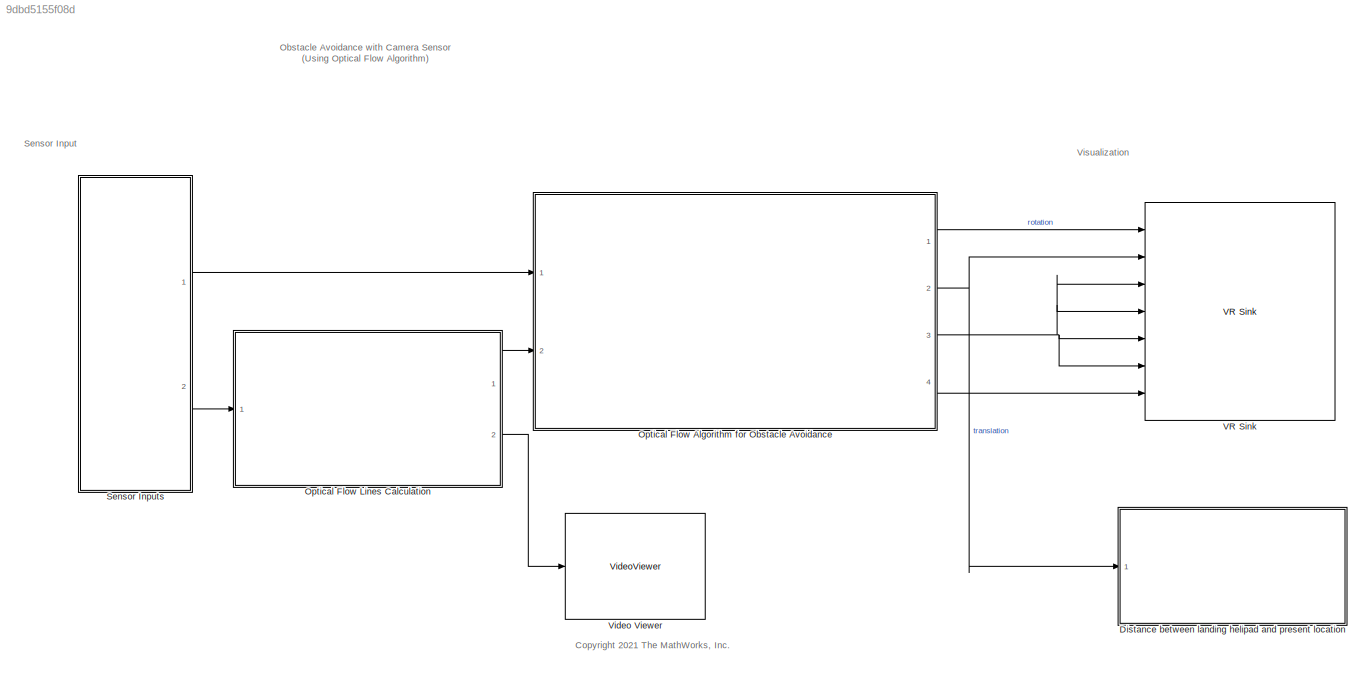
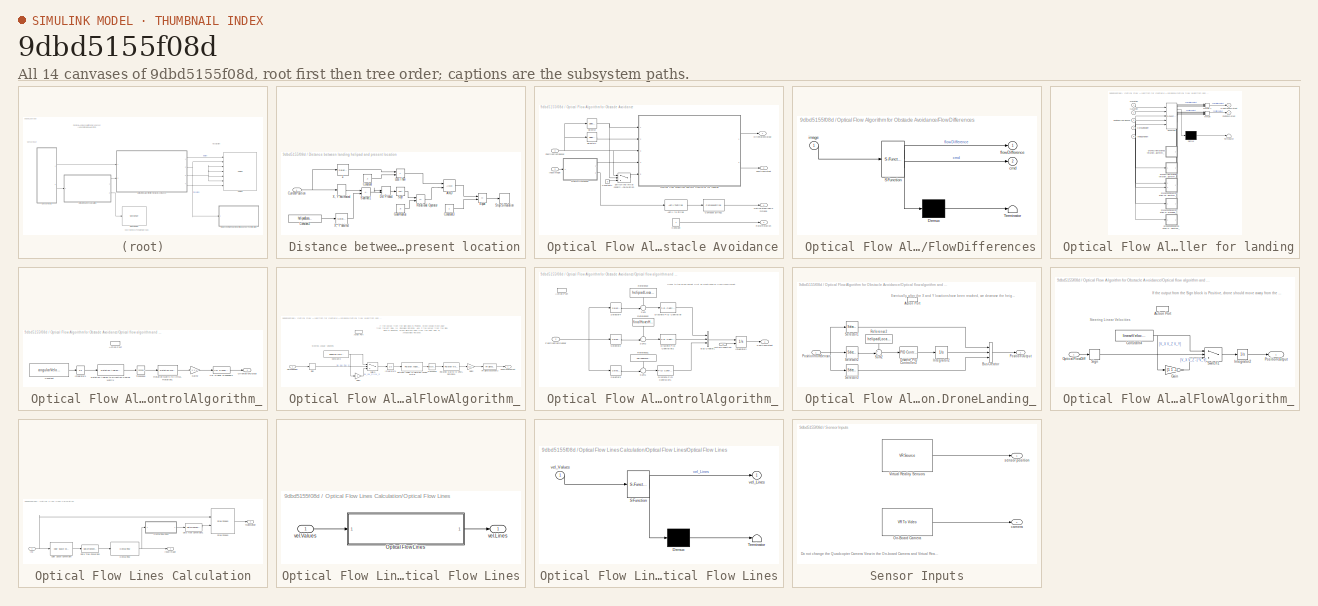
[diagram: thumbnail index - all 14 canvases of the model, root first then tree order]
MODEL slx_9dbd5155f08d
KIND model
CONFIG AbsTol = auto
CONFIG EnableMultiTasking = off
CONFIG FixedStep = auto
CONFIG InitFcn = startScript;
CONFIG MaxStep = auto
CONFIG MinStep = auto
CONFIG PostLoadFcn = %Add subfolders to path\naddpath('virtualworld');\n
CONFIG RelTol = 1e-3
CONFIG SampleTimeConstraint = Unconstrained
CONFIG SolverName = VariableStepAuto
CONFIG StartTime = 0.0
CONFIG StopTime = 30
BLOCK [SubSystem]  Distance between landing helipad and present location
  Ports = [1]
  RequestExecContextInheritance = off
BLOCK [Logic]  Distance between landing helipad and present location/AND
  AllPortsSameDT = off
  IconShape = distinctive
  OutDataTypeStr = boolean
  Ports = [2, 1]
BLOCK [Constant]  Distance between landing helipad and present location/Constant
  Value = .2
BLOCK [Constant]  Distance between landing helipad and present location/Constant2
  Value = helipadLocation
BLOCK [Constant]  Distance between landing helipad and present location/Constant3
BLOCK [Inport]  Distance between landing helipad and present location/CurrentPosition
BLOCK [DotProduct]  Distance between landing helipad and present location/Dot Product
  OutDataTypeStr = Inherit: Inherit via internal rule
BLOCK [RelationalOperator]  Distance between landing helipad and present location/Equal
  InputSameDT = off
  Operator = ==
  OutDataTypeStr = boolean
  Ports = [2, 1]
  RndMeth = Simplest
BLOCK [Constant]  Distance between landing helipad and present location/GoalRadius
  Value = .5
BLOCK [RelationalOperator]  Distance between landing helipad and present location/Less Than
  InputSameDT = off
  Operator = <
  OutDataTypeStr = boolean
  Ports = [2, 1]
  RndMeth = Simplest
BLOCK [RelationalOperator]  Distance between landing helipad and present location/Relational Operator
  InputSameDT = off
  Operator = <=
  OutDataTypeStr = boolean
  Ports = [2, 1]
  RndMeth = Simplest
BLOCK [Sqrt]  Distance between landing helipad and present location/Sqrt
BLOCK [Stop]  Distance between landing helipad and present location/Stop Simulation
BLOCK [Sum]  Distance between landing helipad and present location/Subtract1
  IconShape = rectangular
  Inputs = +-
  Ports = [2, 1]
BLOCK [Selector]  Distance between landing helipad and present location/X, Y desired
  IndexOptions = Index vector (dialog)
  Indices = [1 3]
  InputPortWidth = 3
  OutputSizes = 1
  Ports = [1, 1]
BLOCK [Selector]  Distance between landing helipad and present location/X, Y estimated
  IndexOptions = Index vector (dialog)
  Indices = [1 3]
  InputPortWidth = 3
  OutputSizes = 1
  Ports = [1, 1]
BLOCK [Selector]  Distance between landing helipad and present location/Z
  IndexOptions = Index vector (dialog)
  Indices = [2]
  InputPortWidth = 3
  OutputSizes = 1
  Ports = [1, 1]
BLOCK [SubSystem]  Optical Flow Algorithm for Obstacle Avoidance
  Ports = [2, 4]
  RequestExecContextInheritance = off
BLOCK [ASCIIToString]  Optical Flow Algorithm for Obstacle Avoidance/ASCII to String
BLOCK [ComposeString]  Optical Flow Algorithm for Obstacle Avoidance/Compose String1
  Format = "%s"
  Ports = [1, 1]
BLOCK [Constant]  Optical Flow Algorithm for Obstacle Avoidance/Constant
BLOCK [Constant]  Optical Flow Algorithm for Obstacle Avoidance/Constant1
  Value = 0
BLOCK [SubSystem]  Optical Flow Algorithm for Obstacle Avoidance/FlowDifferences
  ErrorFcn = Stateflow.Translate.translate
  PermitHierarchicalResolution = ExplicitOnly
  Ports = [1, 2]
  RequestExecContextInheritance = off
  SFBlockType = MATLAB Function
  TreatAsAtomicUnit = on
BLOCK [Demux]  Optical Flow Algorithm for Obstacle Avoidance/FlowDifferences/ Demux 
  Outputs = 1
  Ports = [1, 1]
BLOCK [S-Function]  Optical Flow Algorithm for Obstacle Avoidance/FlowDifferences/ SFunction 
  EnableBusSupport = on
  FunctionName = sf_sfun
  PortCounts = [1 3]
  Ports = [1, 3]
  SFcnIsStateOwnerBlock = off
  SFunctionDeploymentMode = off
  Tag = Stateflow S-Function 8
BLOCK [Terminator]  Optical Flow Algorithm for Obstacle Avoidance/FlowDifferences/ Terminator 
BLOCK [Outport]  Optical Flow Algorithm for Obstacle Avoidance/FlowDifferences/cmd
  Port = 2
BLOCK [Outport]  Optical Flow Algorithm for Obstacle Avoidance/FlowDifferences/flowDifference
BLOCK [Inport]  Optical Flow Algorithm for Obstacle Avoidance/FlowDifferences/image
BLOCK [Inport]  Optical Flow Algorithm for Obstacle Avoidance/InputImage
  Port = 2
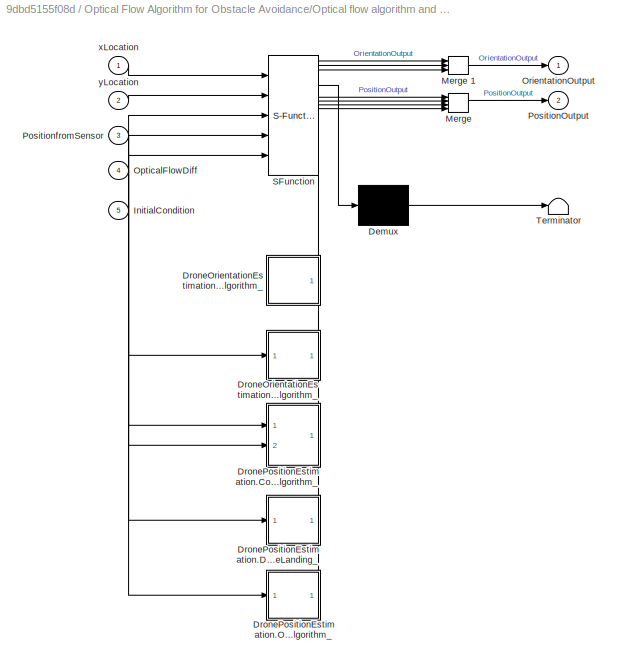
BLOCK [SubSystem]  Optical Flow Algorithm for Obstacle Avoidance/Optical flow algorithm and PID Controller for landing
  ErrorFcn = Stateflow.Translate.translate
  PermitHierarchicalResolution = ExplicitOnly
  Ports = [5, 2]
  RequestExecContextInheritance = off
  SFBlockType = Chart
  TreatAsAtomicUnit = on
BLOCK [Demux]  Optical Flow Algorithm for Obstacle Avoidance/Optical flow algorithm and PID Controller for landing/ Demux 
  Outputs = 1
  Ports = [1, 1]
BLOCK [Merge]  Optical Flow Algorithm for Obstacle Avoidance/Optical flow algorithm and PID Controller for landing/ Merge 
  Inputs = 4
  Ports = [4, 1]
BLOCK [Merge]  Optical Flow Algorithm for Obstacle Avoidance/Optical flow algorithm and PID Controller for landing/ Merge 1
  Inputs = 3
  Ports = [3, 1]
BLOCK [S-Function]  Optical Flow Algorithm for Obstacle Avoidance/Optical flow algorithm and PID Controller for landing/ SFunction 
  EnableBusSupport = on
  FunctionName = sf_sfun
  Parameters = delta,helipadLocation,switchingXLimit
  PortCounts = [5 3]
  Ports = [5, 3]
  SFcnIsStateOwnerBlock = off
  SFunctionDeploymentMode = off
  Tag = Stateflow S-Function 3
BLOCK [Terminator]  Optical Flow Algorithm for Obstacle Avoidance/Optical flow algorithm and PID Controller for landing/ Terminator 
BLOCK [SubSystem]  Optical Flow Algorithm for Obstacle Avoidance/Optical flow algorithm and PID Controller for landing/DroneOrientationEstimation.ControlAlgorithm_
  Ports = [0, 1, 0, 0, 0, 0, 0, 1]
  PreDeleteFcn = Stateflow.SLINSF.SimulinkMan.removePreDeleteFcn
  RequestExecContextInheritance = off
  UndoDeleteFcn = Stateflow.SLINSF.SimulinkMan.restorePreDeleteFcn
BLOCK [ActionPort]  Optical Flow Algorithm for Obstacle Avoidance/Optical flow algorithm and PID Controller for landing/DroneOrientationEstimation.ControlAlgorithm_/Action Port
  CopyFcn = Stateflow.SLINSF.SimulinkMan.removeBlockPreDeleteFcn
  PreDeleteFcn = Stateflow.SLINSF.SimulinkMan.unsafePredeleteFcn
BLOCK [Constant]  Optical Flow Algorithm for Obstacle Avoidance/Optical flow algorithm and PID Controller for landing/DroneOrientationEstimation.ControlAlgorithm_/Constant
  Value = angularVelocityforLanding
BLOCK [Gain]  Optical Flow Algorithm for Obstacle Avoidance/Optical flow algorithm and PID Controller for landing/DroneOrientationEstimation.ControlAlgorithm_/Gain2
  Gain = [-1 1 1 1]
BLOCK [Integrator]  Optical Flow Algorithm for Obstacle Avoidance/Optical flow algorithm and PID Controller for landing/DroneOrientationEstimation.ControlAlgorithm_/Integrator1
  Ports = [1, 1]
BLOCK [Outport]  Optical Flow Algorithm for Obstacle Avoidance/Optical flow algorithm and PID Controller for landing/DroneOrientationEstimation.ControlAlgorithm_/OrientationOutput
BLOCK [Reference]  Optical Flow Algorithm for Obstacle Avoidance/Optical flow algorithm and PID Controller for landing/DroneOrientationEstimation.ControlAlgorithm_/Rotation Angles to Direction Cosine Matrix  REF=sharedtransform/Rotation Angles to
Direction Cosine Matrix
  AttributesFormatString = Rotation Order: %<rotationOrder>
  Ports = [1, 1]
  SourceBlock = sharedtransform/Rotation Angles to\nDirection Cosine Matrix
  SourceProductBaseCode = AE,PW,DR,MT,UV,VE
  SourceType = Ang2DCM
BLOCK [Reference]  Optical Flow Algorithm for Obstacle Avoidance/Optical flow algorithm and PID Controller for landing/DroneOrientationEstimation.ControlAlgorithm_/Rotation Matrix to VRML Rotation1  REF=vrlib/Utilities/Rotation Matrix
to VR Rotation
  Ports = [1, 1]
  SourceBlock = vrlib/Utilities/Rotation Matrix\nto VR Rotation
  SourceProductBaseCode = SL
  SourceType = Rotation Matrix to VR Rotation
BLOCK [Math]  Optical Flow Algorithm for Obstacle Avoidance/Optical flow algorithm and PID Controller for landing/DroneOrientationEstimation.ControlAlgorithm_/Transpose
  Operator = transpose
  Ports = [1, 1]
BLOCK [Reference]  Optical Flow Algorithm for Obstacle Avoidance/Optical flow algorithm and PID Controller for landing/DroneOrientationEstimation.ControlAlgorithm_/VR Signal Expander2  REF=vrlib/VR Signal Expander
  NameLocation = top
  Ports = [1, 1]
  SourceBlock = vrlib/VR Signal Expander
  SourceProductBaseCode = SL
  SourceType = VR Signal Expander
BLOCK [SubSystem]  Optical Flow Algorithm for Obstacle Avoidance/Optical flow algorithm and PID Controller for landing/DroneOrientationEstimation.OpticalFlowAlgorithm_
  Ports = [1, 1, 0, 0, 0, 0, 0, 1]
  PreDeleteFcn = Stateflow.SLINSF.SimulinkMan.removePreDeleteFcn
  RequestExecContextInheritance = off
  UndoDeleteFcn = Stateflow.SLINSF.SimulinkMan.restorePreDeleteFcn
BLOCK [ActionPort]  Optical Flow Algorithm for Obstacle Avoidance/Optical flow algorithm and PID Controller for landing/DroneOrientationEstimation.OpticalFlowAlgorithm_/Action Port
  CopyFcn = Stateflow.SLINSF.SimulinkMan.removeBlockPreDeleteFcn
  PreDeleteFcn = Stateflow.SLINSF.SimulinkMan.unsafePredeleteFcn
BLOCK [Constant]  Optical Flow Algorithm for Obstacle Avoidance/Optical flow algorithm and PID Controller for landing/DroneOrientationEstimation.OpticalFlowAlgorithm_/Constant2
  Value = angularVelocity
BLOCK [Gain]  Optical Flow Algorithm for Obstacle Avoidance/Optical flow algorithm and PID Controller for landing/DroneOrientationEstimation.OpticalFlowAlgorithm_/Gain1
  Gain = -1
BLOCK [Gain]  Optical Flow Algorithm for Obstacle Avoidance/Optical flow algorithm and PID Controller for landing/DroneOrientationEstimation.OpticalFlowAlgorithm_/Gain2
  Gain = [-1 1 1 1]
BLOCK [Integrator]  Optical Flow Algorithm for Obstacle Avoidance/Optical flow algorithm and PID Controller for landing/DroneOrientationEstimation.OpticalFlowAlgorithm_/Integrator1
  Ports = [1, 1]
BLOCK [Inport]  Optical Flow Algorithm for Obstacle Avoidance/Optical flow algorithm and PID Controller for landing/DroneOrientationEstimation.OpticalFlowAlgorithm_/OpticalFlowDiff
BLOCK [Outport]  Optical Flow Algorithm for Obstacle Avoidance/Optical flow algorithm and PID Controller for landing/DroneOrientationEstimation.OpticalFlowAlgorithm_/OrientationOutput 
BLOCK [Reference]  Optical Flow Algorithm for Obstacle Avoidance/Optical flow algorithm and PID Controller for landing/DroneOrientationEstimation.OpticalFlowAlgorithm_/Rotation Angles to Direction Cosine Matrix  REF=sharedtransform/Rotation Angles to
Direction Cosine Matrix
  AttributesFormatString = Rotation Order: %<rotationOrder>
  Ports = [1, 1]
  SourceBlock = sharedtransform/Rotation Angles to\nDirection Cosine Matrix
  SourceProductBaseCode = AE,PW,DR,MT,UV,VE
  SourceType = Ang2DCM
BLOCK [Reference]  Optical Flow Algorithm for Obstacle Avoidance/Optical flow algorithm and PID Controller for landing/DroneOrientationEstimation.OpticalFlowAlgorithm_/Rotation Matrix to VRML Rotation1  REF=vrlib/Utilities/Rotation Matrix
to VR Rotation
  Ports = [1, 1]
  SourceBlock = vrlib/Utilities/Rotation Matrix\nto VR Rotation
  SourceProductBaseCode = SL
  SourceType = Rotation Matrix to VR Rotation
BLOCK [Signum]  Optical Flow Algorithm for Obstacle Avoidance/Optical flow algorithm and PID Controller for landing/DroneOrientationEstimation.OpticalFlowAlgorithm_/Sign
BLOCK [Switch]  Optical Flow Algorithm for Obstacle Avoidance/Optical flow algorithm and PID Controller for landing/DroneOrientationEstimation.OpticalFlowAlgorithm_/Switch
  Criteria = u2 > Threshold
  InputSameDT = off
  SaturateOnIntegerOverflow = off
BLOCK [Math]  Optical Flow Algorithm for Obstacle Avoidance/Optical flow algorithm and PID Controller for landing/DroneOrientationEstimation.OpticalFlowAlgorithm_/Transpose
  Operator = transpose
  Ports = [1, 1]
BLOCK [Reference]  Optical Flow Algorithm for Obstacle Avoidance/Optical flow algorithm and PID Controller for landing/DroneOrientationEstimation.OpticalFlowAlgorithm_/VR Signal Expander2  REF=vrlib/VR Signal Expander
  NameLocation = top
  Ports = [1, 1]
  SourceBlock = vrlib/VR Signal Expander
  SourceProductBaseCode = SL
  SourceType = VR Signal Expander
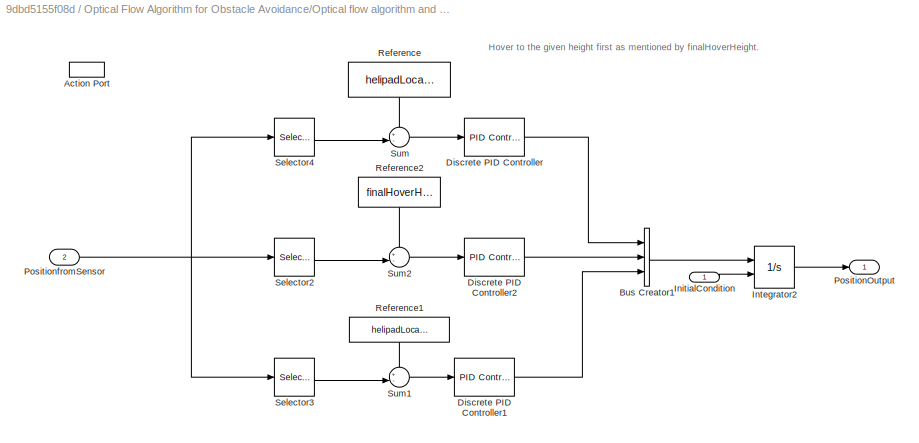
BLOCK [SubSystem]  Optical Flow Algorithm for Obstacle Avoidance/Optical flow algorithm and PID Controller for landing/DronePositionEstimation.ControlAlgorithm_
  Ports = [2, 1, 0, 0, 0, 0, 0, 1]
  PreDeleteFcn = Stateflow.SLINSF.SimulinkMan.removePreDeleteFcn
  RequestExecContextInheritance = off
  UndoDeleteFcn = Stateflow.SLINSF.SimulinkMan.restorePreDeleteFcn
BLOCK [ActionPort]  Optical Flow Algorithm for Obstacle Avoidance/Optical flow algorithm and PID Controller for landing/DronePositionEstimation.ControlAlgorithm_/Action Port
  CopyFcn = Stateflow.SLINSF.SimulinkMan.removeBlockPreDeleteFcn
  PreDeleteFcn = Stateflow.SLINSF.SimulinkMan.unsafePredeleteFcn
BLOCK [BusCreator]  Optical Flow Algorithm for Obstacle Avoidance/Optical flow algorithm and PID Controller for landing/DronePositionEstimation.ControlAlgorithm_/Bus Creator1
  DisplayOption = bar
  InheritFromInputs = on
  Inputs = 3
  Ports = [3, 1]
BLOCK [Reference]  Optical Flow Algorithm for Obstacle Avoidance/Optical flow algorithm and PID Controller for landing/DronePositionEstimation.ControlAlgorithm_/Discrete PID Controller  REF=pid_lib/PID Controller
  Ports = [1, 1]
  SourceBlock = pid_lib/PID Controller
  SourceProductBaseCode = SL
  SourceType = PID 1dof
BLOCK [Reference]  Optical Flow Algorithm for Obstacle Avoidance/Optical flow algorithm and PID Controller for landing/DronePositionEstimation.ControlAlgorithm_/Discrete PID Controller1  REF=pid_lib/PID Controller
  Ports = [1, 1]
  SourceBlock = pid_lib/PID Controller
  SourceProductBaseCode = SL
  SourceType = PID 1dof
BLOCK [Reference]  Optical Flow Algorithm for Obstacle Avoidance/Optical flow algorithm and PID Controller for landing/DronePositionEstimation.ControlAlgorithm_/Discrete PID Controller2  REF=pid_lib/PID Controller
  Ports = [1, 1]
  SourceBlock = pid_lib/PID Controller
  SourceProductBaseCode = SL
  SourceType = PID 1dof
BLOCK [Inport]  Optical Flow Algorithm for Obstacle Avoidance/Optical flow algorithm and PID Controller for landing/DronePositionEstimation.ControlAlgorithm_/InitialCondition
BLOCK [Integrator]  Optical Flow Algorithm for Obstacle Avoidance/Optical flow algorithm and PID Controller for landing/DronePositionEstimation.ControlAlgorithm_/Integrator2
  InitialCondition = [9.1 0.5 6.2]
  InitialConditionSource = external
  LimitOutput = on
  LowerSaturationLimit = [-5 0 -5]
  Ports = [2, 1]
  UpperSaturationLimit = [40 10 20]
  ZeroCross = off
BLOCK [Outport]  Optical Flow Algorithm for Obstacle Avoidance/Optical flow algorithm and PID Controller for landing/DronePositionEstimation.ControlAlgorithm_/PositionOutput
BLOCK [Inport]  Optical Flow Algorithm for Obstacle Avoidance/Optical flow algorithm and PID Controller for landing/DronePositionEstimation.ControlAlgorithm_/PositionfromSensor
  Port = 2
BLOCK [Constant]  Optical Flow Algorithm for Obstacle Avoidance/Optical flow algorithm and PID Controller for landing/DronePositionEstimation.ControlAlgorithm_/Reference
  NameLocation = left
  Value = helipadLocation(1)
BLOCK [Constant]  Optical Flow Algorithm for Obstacle Avoidance/Optical flow algorithm and PID Controller for landing/DronePositionEstimation.ControlAlgorithm_/Reference1
  NameLocation = left
  Value = helipadLocation(3)
BLOCK [Constant]  Optical Flow Algorithm for Obstacle Avoidance/Optical flow algorithm and PID Controller for landing/DronePositionEstimation.ControlAlgorithm_/Reference2
  NameLocation = left
  Value = finalHoverHeight
BLOCK [Selector]  Optical Flow Algorithm for Obstacle Avoidance/Optical flow algorithm and PID Controller for landing/DronePositionEstimation.ControlAlgorithm_/Selector2
  IndexOptions = Index vector (dialog)
  Indices = [2]
  InputPortWidth = 3
  OutputSizes = 1
  Ports = [1, 1]
BLOCK [Selector]  Optical Flow Algorithm for Obstacle Avoidance/Optical flow algorithm and PID Controller for landing/DronePositionEstimation.ControlAlgorithm_/Selector3
  IndexOptions = Index vector (dialog)
  Indices = [3]
  InputPortWidth = 3
  OutputSizes = 1
  Ports = [1, 1]
BLOCK [Selector]  Optical Flow Algorithm for Obstacle Avoidance/Optical flow algorithm and PID Controller for landing/DronePositionEstimation.ControlAlgorithm_/Selector4
  IndexOptions = Index vector (dialog)
  Indices = [1]
  InputPortWidth = 3
  OutputSizes = 1
  Ports = [1, 1]
BLOCK [Sum]  Optical Flow Algorithm for Obstacle Avoidance/Optical flow algorithm and PID Controller for landing/DronePositionEstimation.ControlAlgorithm_/Sum
  Inputs = +-|
  Ports = [2, 1]
BLOCK [Sum]  Optical Flow Algorithm for Obstacle Avoidance/Optical flow algorithm and PID Controller for landing/DronePositionEstimation.ControlAlgorithm_/Sum1
  Inputs = +-|
  Ports = [2, 1]
BLOCK [Sum]  Optical Flow Algorithm for Obstacle Avoidance/Optical flow algorithm and PID Controller for landing/DronePositionEstimation.ControlAlgorithm_/Sum2
  Inputs = +-|
  Ports = [2, 1]
BLOCK [SubSystem]  Optical Flow Algorithm for Obstacle Avoidance/Optical flow algorithm and PID Controller for landing/DronePositionEstimation.DroneLanding_
  Ports = [1, 1, 0, 0, 0, 0, 0, 1]
  PreDeleteFcn = Stateflow.SLINSF.SimulinkMan.removePreDeleteFcn
  RequestExecContextInheritance = off
  UndoDeleteFcn = Stateflow.SLINSF.SimulinkMan.restorePreDeleteFcn
BLOCK [ActionPort]  Optical Flow Algorithm for Obstacle Avoidance/Optical flow algorithm and PID Controller for landing/DronePositionEstimation.DroneLanding_/Action Port
  CopyFcn = Stateflow.SLINSF.SimulinkMan.removeBlockPreDeleteFcn
  PreDeleteFcn = Stateflow.SLINSF.SimulinkMan.unsafePredeleteFcn
BLOCK [BusCreator]  Optical Flow Algorithm for Obstacle Avoidance/Optical flow algorithm and PID Controller for landing/DronePositionEstimation.DroneLanding_/Bus Creator
  DisplayOption = bar
  InheritFromInputs = on
  Inputs = 3
  Ports = [3, 1]
BLOCK [Reference]  Optical Flow Algorithm for Obstacle Avoidance/Optical flow algorithm and PID Controller for landing/DronePositionEstimation.DroneLanding_/Discrete PID Controller2  REF=pid_lib/PID Controller
  Ports = [1, 1]
  SourceBlock = pid_lib/PID Controller
  SourceProductBaseCode = SL
  SourceType = PID 1dof
BLOCK [Integrator]  Optical Flow Algorithm for Obstacle Avoidance/Optical flow algorithm and PID Controller for landing/DronePositionEstimation.DroneLanding_/Integrator2
  InitialCondition = finalHoverHeight
  LowerSaturationLimit = [-5 0 -5]
  Ports = [1, 1]
  UpperSaturationLimit = [40 10 20]
  ZeroCross = off
BLOCK [Outport]  Optical Flow Algorithm for Obstacle Avoidance/Optical flow algorithm and PID Controller for landing/DronePositionEstimation.DroneLanding_/PositionOutput
BLOCK [Inport]  Optical Flow Algorithm for Obstacle Avoidance/Optical flow algorithm and PID Controller for landing/DronePositionEstimation.DroneLanding_/PositionfromSensor
BLOCK [Constant]  Optical Flow Algorithm for Obstacle Avoidance/Optical flow algorithm and PID Controller for landing/DronePositionEstimation.DroneLanding_/Reference2
  NameLocation = right
  Value = helipadLocation(2)
BLOCK [Selector]  Optical Flow Algorithm for Obstacle Avoidance/Optical flow algorithm and PID Controller for landing/DronePositionEstimation.DroneLanding_/Selector1
  IndexOptions = Index vector (dialog)
  Indices = [1]
  InputPortWidth = 3
  OutputSizes = 1
  Ports = [1, 1]
BLOCK [Selector]  Optical Flow Algorithm for Obstacle Avoidance/Optical flow algorithm and PID Controller for landing/DronePositionEstimation.DroneLanding_/Selector2
  IndexOptions = Index vector (dialog)
  Indices = [2]
  InputPortWidth = 3
  OutputSizes = 1
  Ports = [1, 1]
BLOCK [Selector]  Optical Flow Algorithm for Obstacle Avoidance/Optical flow algorithm and PID Controller for landing/DronePositionEstimation.DroneLanding_/Selector3
  IndexOptions = Index vector (dialog)
  Indices = [3]
  InputPortWidth = 3
  OutputSizes = 1
  Ports = [1, 1]
BLOCK [Sum]  Optical Flow Algorithm for Obstacle Avoidance/Optical flow algorithm and PID Controller for landing/DronePositionEstimation.DroneLanding_/Sum2
  Inputs = +-|
  Ports = [2, 1]
BLOCK [SubSystem]  Optical Flow Algorithm for Obstacle Avoidance/Optical flow algorithm and PID Controller for landing/DronePositionEstimation.OpticalFlowAlgorithm_
  Ports = [1, 1, 0, 0, 0, 0, 0, 1]
  PreDeleteFcn = Stateflow.SLINSF.SimulinkMan.removePreDeleteFcn
  RequestExecContextInheritance = off
  UndoDeleteFcn = Stateflow.SLINSF.SimulinkMan.restorePreDeleteFcn
BLOCK [ActionPort]  Optical Flow Algorithm for Obstacle Avoidance/Optical flow algorithm and PID Controller for landing/DronePositionEstimation.OpticalFlowAlgorithm_/Action Port
  CopyFcn = Stateflow.SLINSF.SimulinkMan.removeBlockPreDeleteFcn
  PreDeleteFcn = Stateflow.SLINSF.SimulinkMan.unsafePredeleteFcn
BLOCK [Constant]  Optical Flow Algorithm for Obstacle Avoidance/Optical flow algorithm and PID Controller for landing/DronePositionEstimation.OpticalFlowAlgorithm_/Constant4
  Value = linearVelocity
BLOCK [Gain]  Optical Flow Algorithm for Obstacle Avoidance/Optical flow algorithm and PID Controller for landing/DronePositionEstimation.OpticalFlowAlgorithm_/Gain
  Gain = [1 1 -1]
BLOCK [Integrator]  Optical Flow Algorithm for Obstacle Avoidance/Optical flow algorithm and PID Controller for landing/DronePositionEstimation.OpticalFlowAlgorithm_/Integrator2
  InitialCondition = dronestartlocation
  Ports = [1, 1]
BLOCK [Inport]  Optical Flow Algorithm for Obstacle Avoidance/Optical flow algorithm and PID Controller for landing/DronePositionEstimation.OpticalFlowAlgorithm_/OpticalFlowDiff
BLOCK [Outport]  Optical Flow Algorithm for Obstacle Avoidance/Optical flow algorithm and PID Controller for landing/DronePositionEstimation.OpticalFlowAlgorithm_/PositionOutput
BLOCK [Signum]  Optical Flow Algorithm for Obstacle Avoidance/Optical flow algorithm and PID Controller for landing/DronePositionEstimation.OpticalFlowAlgorithm_/Sign
BLOCK [Switch]  Optical Flow Algorithm for Obstacle Avoidance/Optical flow algorithm and PID Controller for landing/DronePositionEstimation.OpticalFlowAlgorithm_/Switch1
  Criteria = u2 > Threshold
  InputSameDT = off
  SaturateOnIntegerOverflow = off
BLOCK [Inport]  Optical Flow Algorithm for Obstacle Avoidance/Optical flow algorithm and PID Controller for landing/InitialCondition
  Port = 5
BLOCK [Inport]  Optical Flow Algorithm for Obstacle Avoidance/Optical flow algorithm and PID Controller for landing/OpticalFlowDiff
  Port = 4
BLOCK [Outport]  Optical Flow Algorithm for Obstacle Avoidance/Optical flow algorithm and PID Controller for landing/OrientationOutput
BLOCK [Outport]  Optical Flow Algorithm for Obstacle Avoidance/Optical flow algorithm and PID Controller for landing/PositionOutput
  Port = 2
BLOCK [Inport]  Optical Flow Algorithm for Obstacle Avoidance/Optical flow algorithm and PID Controller for landing/PositionfromSensor
  Port = 3
BLOCK [Inport]  Optical Flow Algorithm for Obstacle Avoidance/Optical flow algorithm and PID Controller for landing/xLocation
BLOCK [Inport]  Optical Flow Algorithm for Obstacle Avoidance/Optical flow algorithm and PID Controller for landing/yLocation
  Port = 2
BLOCK [Outport]  Optical Flow Algorithm for Obstacle Avoidance/OpticalSteeringCommand
  Port = 4
BLOCK [Outport]  Optical Flow Algorithm for Obstacle Avoidance/OrientaionOutput
BLOCK [Outport]  Optical Flow Algorithm for Obstacle Avoidance/PositionOutput
  Port = 2
BLOCK [Inport]  Optical Flow Algorithm for Obstacle Avoidance/PositionfromSensor
BLOCK [Outport]  Optical Flow Algorithm for Obstacle Avoidance/RotorRotation
  Port = 3
BLOCK [Selector]  Optical Flow Algorithm for Obstacle Avoidance/Selector
  IndexOptions = Index vector (dialog)
  Indices = [1]
  InputPortWidth = 3
  OutputSizes = 1
  Ports = [1, 1]
BLOCK [Selector]  Optical Flow Algorithm for Obstacle Avoidance/Selector1
  IndexOptions = Index vector (dialog)
  Indices = [3]
  InputPortWidth = 3
  OutputSizes = 1
  Ports = [1, 1]
BLOCK [Switch]  Optical Flow Algorithm for Obstacle Avoidance/Switch the initial condition for position calculation
  Criteria = u2 > Threshold
  InputSameDT = off
  SaturateOnIntegerOverflow = off
  Threshold = switchingXLimit
BLOCK [SubSystem] Optical Flow Lines Calculation
  Ports = [1, 2]
  RequestExecContextInheritance = off
BLOCK [Reference] Optical Flow Lines Calculation/Color Space Conversion  REF=visionconversions/Color Space
 Conversion
  Ports = [1, 1]
  SourceBlock = visionconversions/Color Space\n Conversion
  SourceProductBaseCode = VP
  SourceType = Color Space Conversion
BLOCK [DataTypeConversion] Optical Flow Lines Calculation/Data Type Conversion
  OutDataTypeStr = double
  RndMeth = Floor
  SaturateOnIntegerOverflow = off
BLOCK [DataTypeConversion] Optical Flow Lines Calculation/Data Type Conversion1
  OutDataTypeStr = int32
  RndMeth = Floor
  SaturateOnIntegerOverflow = off
BLOCK [Reference] Optical Flow Lines Calculation/Draw Shapes  REF=visiontextngfix/Draw Shapes
  Ports = [2, 1]
  SourceBlock = visiontextngfix/Draw Shapes
  SourceProductBaseCode = VP
  SourceType = Draw Shapes
BLOCK [Inport] Optical Flow Lines Calculation/In2
BLOCK [Outport] Optical Flow Lines Calculation/InputImage
BLOCK [Reference] Optical Flow Lines Calculation/Optical Flow  REF=visionanalysis/Optical Flow
  Ports = [1, 1]
  SourceBlock = visionanalysis/Optical Flow
  SourceProductBaseCode = VP
  SourceType = Optical Flow
BLOCK [SubSystem] Optical Flow Lines Calculation/Optical Flow Lines
  Ports = [1, 1]
  RequestExecContextInheritance = off
BLOCK [SubSystem] Optical Flow Lines Calculation/Optical Flow Lines/Optical Flow Lines
  ErrorFcn = Stateflow.Translate.translate
  PermitHierarchicalResolution = ExplicitOnly
  Ports = [1, 1]
  RequestExecContextInheritance = off
  SFBlockType = MATLAB Function
  TreatAsAtomicUnit = on
BLOCK [Demux] Optical Flow Lines Calculation/Optical Flow Lines/Optical Flow Lines/ Demux 
  Outputs = 1
  Ports = [1, 1]
BLOCK [S-Function] Optical Flow Lines Calculation/Optical Flow Lines/Optical Flow Lines/ SFunction 
  EnableBusSupport = on
  FunctionName = sf_sfun
  Parameters = scaleFactor
  PortCounts = [1 2]
  Ports = [1, 2]
  SFcnIsStateOwnerBlock = off
  SFunctionDeploymentMode = off
  Tag = Stateflow S-Function 6
BLOCK [Terminator] Optical Flow Lines Calculation/Optical Flow Lines/Optical Flow Lines/ Terminator 
BLOCK [Outport] Optical Flow Lines Calculation/Optical Flow Lines/Optical Flow Lines/vel_Lines
BLOCK [Inport] Optical Flow Lines Calculation/Optical Flow Lines/Optical Flow Lines/vel_Values
BLOCK [Outport] Optical Flow Lines Calculation/Optical Flow Lines/vel.Lines
BLOCK [Inport] Optical Flow Lines Calculation/Optical Flow Lines/vel.Values
BLOCK [Outport] Optical Flow Lines Calculation/ToVideoViewer
  Port = 2
BLOCK [SubSystem] Sensor Inputs
  Ports = [0, 2]
  RequestExecContextInheritance = off
BLOCK [Reference] Sensor Inputs/On-Board Camera  REF=vrlib/VR To Video
  InstantiateOnLoad = on
  Ports = [0, 1]
  SourceBlock = vrlib/VR To Video
  SourceProductBaseCode = SL
  SourceType = Virtual Reality Sink
BLOCK [Reference] Sensor Inputs/Virtual Reality Sensors  REF=vrlib/VR Source
  InstantiateOnLoad = on
  Ports = [0, 1]
  SourceBlock = vrlib/VR Source
  SourceProductBaseCode = SL
  SourceType = Virtual Reality Source
BLOCK [Outport] Sensor Inputs/camera
  Port = 2
BLOCK [Outport] Sensor Inputs/sensor position
BLOCK [Reference] VR Sink  REF=vrlib/VR Sink
  InstantiateOnLoad = on
  Ports = [7]
  SourceBlock = vrlib/VR Sink
  SourceProductBaseCode = SL
  SourceType = Virtual Reality Sink
BLOCK [VideoViewer] Video Viewer
  FigPos = [1128 975 641 724]
  OpenAtMdlStart = off
  Ports = [1]
  ScopeSpecificationString = vipscopes.VideoViewerScopeCfg('CurrentConfiguration', extmgr.ConfigurationSet(extmgr.Configuration('Core','General UI',true),extmgr.Configuration('Core','Source UI',true),extmgr.Configuration('Sources','WiredSimulink',true),extmgr.Configuration('Visuals','Video',true),extmgr.Configuration('Tools','Image Navigation Tools',true),extmgr.Configuration('Tools','Image Tool',true),extmgr.Configuration('T...<+76ch>
ANNOTATION (root): Obstacle Avoidance with Camera Sensor (Using Optical Flow Algorithm)
ANNOTATION (root): <copyright redacted>
ANNOTATION (root): Sensor Input
ANNOTATION (root): Visualization
ANNOTATION  Optical Flow Algorithm for Obstacle Avoidance/Optical flow algorithm and PID Controller for landing/DroneOrientationEstimation.OpticalFlowAlgorithm_: If the output from the Sign block is Positive, drone should move away from the left side, i.e. Clockwise Rotation. Also, if the output from the Sign block is Negative, drone will move away from the right side..ie, Anticlockwise Rotation.
ANNOTATION  Optical Flow Algorithm for Obstacle Avoidance/Optical flow algorithm and PID Controller for landing/DroneOrientationEstimation.OpticalFlowAlgorithm_: Steering Angular Velocities
ANNOTATION  Optical Flow Algorithm for Obstacle Avoidance/Optical flow algorithm and PID Controller for landing/DronePositionEstimation.ControlAlgorithm_: Hover to the given height first as mentioned by finalHoverHeight.
ANNOTATION  Optical Flow Algorithm for Obstacle Avoidance/Optical flow algorithm and PID Controller for landing/DronePositionEstimation.DroneLanding_: Eventually, after the X and Y locations have been reached, we decrease the height fron finalHoverHeight to the height of the helipad platform
ANNOTATION  Optical Flow Algorithm for Obstacle Avoidance/Optical flow algorithm and PID Controller for landing/DronePositionEstimation.OpticalFlowAlgorithm_: If the output from the Sign block is Positive, drone should move away from the left side, i.e. V_y is Positive. Also, if the output from the Sign block is Negative, drone will move away from the right side..ie, V_y is Negative.
ANNOTATION  Optical Flow Algorithm for Obstacle Avoidance/Optical flow algorithm and PID Controller for landing/DronePositionEstimation.OpticalFlowAlgorithm_: Steering Linear Velocities
ANNOTATION Sensor Inputs: Do not change the Quadcopter Camera View in the On-board Camera and Virtual Reality Sensors block. This will affect the Optical Flow algorithm since we need the images from the front camera.
LINE  Distance between landing helipad and present location/AND:1 ->  Distance between landing helipad and present location/Equal:1
LINE  Distance between landing helipad and present location/Constant2:1 ->  Distance between landing helipad and present location/X, Y desired:1
LINE  Distance between landing helipad and present location/Constant3:1 ->  Distance between landing helipad and present location/Equal:2
LINE  Distance between landing helipad and present location/Constant:1 ->  Distance between landing helipad and present location/Less Than:2
NET  Distance between landing helipad and present location/CurrentPosition:1 ->  Distance between landing helipad and present location/X, Y estimated:1,  Distance between landing helipad and present location/Z:1
LINE  Distance between landing helipad and present location/Dot Product:1 ->  Distance between landing helipad and present location/Sqrt:1
LINE  Distance between landing helipad and present location/Equal:1 ->  Distance between landing helipad and present location/Stop Simulation:1
LINE  Distance between landing helipad and present location/GoalRadius:1 ->  Distance between landing helipad and present location/Relational Operator:2
LINE  Distance between landing helipad and present location/Less Than:1 ->  Distance between landing helipad and present location/AND:1
LINE  Distance between landing helipad and present location/Relational Operator:1 ->  Distance between landing helipad and present location/AND:2
LINE  Distance between landing helipad and present location/Sqrt:1 ->  Distance between landing helipad and present location/Relational Operator:1
NET  Distance between landing helipad and present location/Subtract1:1 ->  Distance between landing helipad and present location/Dot Product:1,  Distance between landing helipad and present location/Dot Product:2
LINE  Distance between landing helipad and present location/X, Y desired:1 ->  Distance between landing helipad and present location/Subtract1:2
LINE  Distance between landing helipad and present location/X, Y estimated:1 ->  Distance between landing helipad and present location/Subtract1:1
LINE  Distance between landing helipad and present location/Z:1 ->  Distance between landing helipad and present location/Less Than:1
LINE  Optical Flow Algorithm for Obstacle Avoidance/ASCII to String:1 ->  Optical Flow Algorithm for Obstacle Avoidance/Compose String1:1
LINE  Optical Flow Algorithm for Obstacle Avoidance/Compose String1:1 ->  Optical Flow Algorithm for Obstacle Avoidance/OpticalSteeringCommand:1
LINE  Optical Flow Algorithm for Obstacle Avoidance/Constant1:1 ->  Optical Flow Algorithm for Obstacle Avoidance/Switch the initial condition for position calculation:3
LINE  Optical Flow Algorithm for Obstacle Avoidance/Constant:1 ->  Optical Flow Algorithm for Obstacle Avoidance/RotorRotation:1
LINE  Optical Flow Algorithm for Obstacle Avoidance/FlowDifferences:1 ->  Optical Flow Algorithm for Obstacle Avoidance/Optical flow algorithm and PID Controller for landing:4
LINE  Optical Flow Algorithm for Obstacle Avoidance/FlowDifferences:2 ->  Optical Flow Algorithm for Obstacle Avoidance/ASCII to String:1
LINE  Optical Flow Algorithm for Obstacle Avoidance/InputImage:1 ->  Optical Flow Algorithm for Obstacle Avoidance/FlowDifferences:1
LINE  Optical Flow Algorithm for Obstacle Avoidance/Optical flow algorithm and PID Controller for landing:1 ->  Optical Flow Algorithm for Obstacle Avoidance/OrientaionOutput:1
LINE  Optical Flow Algorithm for Obstacle Avoidance/Optical flow algorithm and PID Controller for landing:2 ->  Optical Flow Algorithm for Obstacle Avoidance/PositionOutput:1
NET  Optical Flow Algorithm for Obstacle Avoidance/PositionfromSensor:1 ->  Optical Flow Algorithm for Obstacle Avoidance/Optical flow algorithm and PID Controller for landing:3,  Optical Flow Algorithm for Obstacle Avoidance/Selector1:1,  Optical Flow Algorithm for Obstacle Avoidance/Selector:1,  Optical Flow Algorithm for Obstacle Avoidance/Switch the initial condition for position calculation:1
LINE  Optical Flow Algorithm for Obstacle Avoidance/Selector1:1 ->  Optical Flow Algorithm for Obstacle Avoidance/Optical flow algorithm and PID Controller for landing:2
NET  Optical Flow Algorithm for Obstacle Avoidance/Selector:1 ->  Optical Flow Algorithm for Obstacle Avoidance/Optical flow algorithm and PID Controller for landing:1,  Optical Flow Algorithm for Obstacle Avoidance/Switch the initial condition for position calculation:2
LINE  Optical Flow Algorithm for Obstacle Avoidance/Switch the initial condition for position calculation:1 ->  Optical Flow Algorithm for Obstacle Avoidance/Optical flow algorithm and PID Controller for landing:5
LINE  Optical Flow Algorithm for Obstacle Avoidance:1 -> VR Sink:1
NET  Optical Flow Algorithm for Obstacle Avoidance:2 ->  Distance between landing helipad and present location:1, VR Sink:2
NET  Optical Flow Algorithm for Obstacle Avoidance:3 -> VR Sink:3, VR Sink:4, VR Sink:5, VR Sink:6
LINE  Optical Flow Algorithm for Obstacle Avoidance:4 -> VR Sink:7
LINE Optical Flow Lines Calculation/Color Space Conversion:1 -> Optical Flow Lines Calculation/Data Type Conversion:1
LINE Optical Flow Lines Calculation/Data Type Conversion1:1 -> Optical Flow Lines Calculation/Draw Shapes:2
LINE Optical Flow Lines Calculation/Data Type Conversion:1 -> Optical Flow Lines Calculation/Optical Flow:1
LINE Optical Flow Lines Calculation/Draw Shapes:1 -> Optical Flow Lines Calculation/ToVideoViewer:1
NET Optical Flow Lines Calculation/In2:1 -> Optical Flow Lines Calculation/Color Space Conversion:1, Optical Flow Lines Calculation/Draw Shapes:1
LINE Optical Flow Lines Calculation/Optical Flow Lines/Optical Flow Lines:1 -> Optical Flow Lines Calculation/Optical Flow Lines/vel.Lines:1
LINE Optical Flow Lines Calculation/Optical Flow Lines/vel.Values:1 -> Optical Flow Lines Calculation/Optical Flow Lines/Optical Flow Lines:1
LINE Optical Flow Lines Calculation/Optical Flow Lines:1 -> Optical Flow Lines Calculation/Data Type Conversion1:1
NET Optical Flow Lines Calculation/Optical Flow:1 -> Optical Flow Lines Calculation/InputImage:1, Optical Flow Lines Calculation/Optical Flow Lines:1
LINE Optical Flow Lines Calculation:1 ->  Optical Flow Algorithm for Obstacle Avoidance:2
LINE Optical Flow Lines Calculation:2 -> Video Viewer:1
LINE Sensor Inputs/On-Board Camera:1 -> Sensor Inputs/camera:1
LINE Sensor Inputs/Virtual Reality Sensors:1 -> Sensor Inputs/sensor position:1
LINE Sensor Inputs:1 ->  Optical Flow Algorithm for Obstacle Avoidance:1
LINE Sensor Inputs:2 -> Optical Flow Lines Calculation:1
note: NET lines group one-source signal fan-out (src -> all destinations, sorted); 1:1 wires keep LINE
CHART  Optical Flow Algorithm for Obstacle Avoidance/Optical flow algorithm and PID Controller for landing states=9 transitions=9
  STATE_LABEL 'DronePositionEstimation'
  STATE_LABEL '<!DOCTYPE HTML PUBLIC "-//W3C//DTD HTML 4.0//EN" "http://www.w3.org/TR/REC-html40/strict.dtd">\n<html><head><meta name="qrichtext" content="1" /><style type="text/css">\np, li { white-space: pre-wrap; }\n</style></head><body align="left" style=" font-family:\'Helvetica\'; font-size:12px; font-weight:400; font-style:normal;">\n<p align="left" style=" margin-top:0px; margin-bottom:0px; margin-left:0px; ma...<+1008ch>'
  STATE_LABEL 'OpticalFlowAlgorithm_'
  STATE_LABEL 'DroneLanding_'
  STATE_LABEL 'ControlAlgorithm_'
  STATE_LABEL '[xLocation>switchingXLimit]'
  STATE_LABEL '[abs(yLocation-helipadLocation(3)) <= delta...\n&& abs(xLocation-helipadLocation(1)) <= delta]'
  STATE_LABEL '[xLocation<switchingXLimit]'
  STATE_LABEL 'after(1,sec)'
  STATE_LABEL '[xLocation<switchingXLimit]'
  STATE_LABEL '<!DOCTYPE HTML PUBLIC "-//W3C//DTD HTML 4.0//EN" "http://www.w3.org/TR/REC-html40/strict.dtd">\n<html><head><meta name="qrichtext" content="1" /><style type="text/css">\np, li { white-space: pre-wrap; }\n</style></head><body align="left" style=" font-family:\'Helvetica\'; font-size:12px; font-weight:400; font-style:normal;">\n<p align="left" style=" margin-top:0px; margin-bottom:0px; margin-left:0px; ma...<+1008ch>'
  STATE_LABEL 'OpticalFlowAlgorithm_'
  STATE_LABEL 'DroneLanding_'
  STATE_LABEL 'ControlAlgorithm_'
  STATE_LABEL 'DroneOrientationEstimation'
  STATE_LABEL '<!DOCTYPE HTML PUBLIC "-//W3C//DTD HTML 4.0//EN" "http://www.w3.org/TR/REC-html40/strict.dtd">\n<html><head><meta name="qrichtext" content="1" /><style type="text/css">\np, li { white-space: pre-wrap; }\n</style></head><body align="left" style=" font-family:\'Helvetica\'; font-size:12px; font-weight:400; font-style:normal;">\n<p align="left" style=" margin-top:0px; margin-bottom:0px; margin-left:0px; ma...<+749ch>'
  STATE_LABEL 'OpticalFlowAlgorithm_'
  STATE_LABEL 'ControlAlgorithm_'
  STATE_LABEL '[xLocation>switchingXLimit]'
  STATE_LABEL '[xLocation<switchingXLimit]'
  STATE_LABEL '<!DOCTYPE HTML PUBLIC "-//W3C//DTD HTML 4.0//EN" "http://www.w3.org/TR/REC-html40/strict.dtd">\n<html><head><meta name="qrichtext" content="1" /><style type="text/css">\np, li { white-space: pre-wrap; }\n</style></head><body align="left" style=" font-family:\'Helvetica\'; font-size:12px; font-weight:400; font-style:normal;">\n<p align="left" style=" margin-top:0px; margin-bottom:0px; margin-left:0px; ma...<+749ch>'
  STATE_LABEL 'OpticalFlowAlgorithm_'
  STATE_LABEL 'ControlAlgorithm_'
CHART Optical Flow Lines Calculation/Optical Flow Lines/Optical Flow Lines states=1 transitions=1
  STATE_LABEL 'eML_blk_kernel()'
  STATE_LABEL 'SCRIPT:\nfunction vel_Lines=OpticalFlowLines(vel_Values, scaleFactor) \n\n% Generates the coordinate points of optical flow lines\n\npersistent first_time;\npersistent X;\npersistent Y;\npersistent RV;\npersistent CV;\nif isempty(first_time)\n    first_time     = 1;\n    %% user may change the following three parameters\n    borderOffset   = 5;\n    decimFactorRow = 5;\n    decimFactorCol = 5;    \n    %%\n    [R ...<+284ch>'
CHART  Optical Flow Algorithm for Obstacle Avoidance/FlowDifferences states=1 transitions=1
  STATE_LABEL 'eML_blk_kernel()'
  STATE_LABEL 'SCRIPT:\nfunction [flowDifference,cmd] = calculatethedifference(image)\n\n% Image Preprocessing\nimage = flip(image, 1);\n\n% Image Width\nwidth = size(image,2);\n\n% Calculate optical flow on right-half and the left-half of the image\nVLeftFlow = image(:, 1:width/2); \nVRightFlow = image(:, width/2:width);\n\n% Sum to get the total Optical Flow on the right-half and on left-half\nvleftflow = sum(VLeftFlow(:));...<+327ch>'
CHART  states=0 transitions=0
CHART  states=0 transitions=0
CHART  states=0 transitions=0
